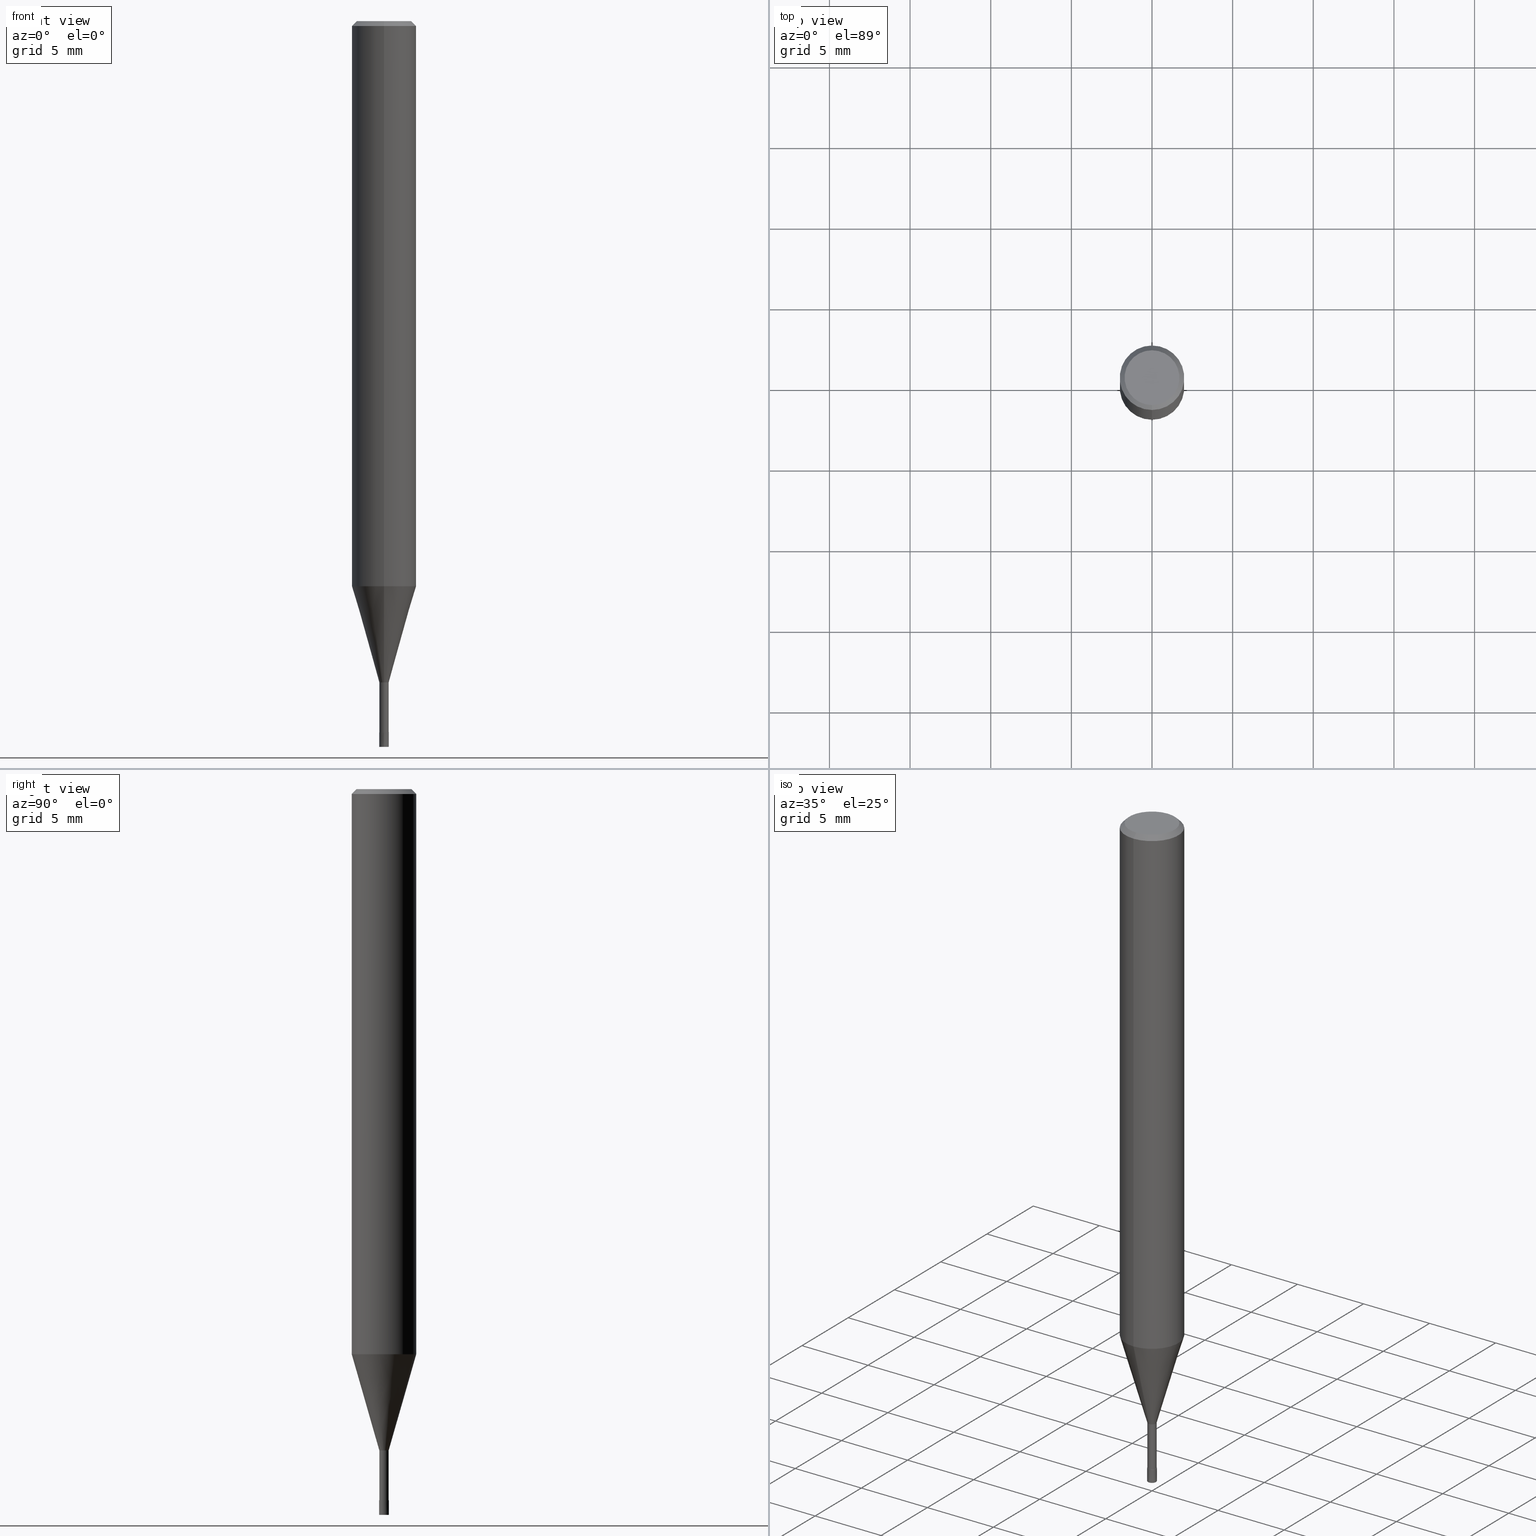
[diagram: canonical four-view strip — front | top / right | iso, engineering-drawing reading convention]
A machine part, canonical four-view strip (front | top / right | iso — engineering-drawing reading convention). The complete STEP part file that produces these views, byte-faithful:
ISO-10303-21;
HEADER;
FILE_DESCRIPTION(('no description'),'unknown implementation level');
FILE_NAME('HLS2006-040-Huellk.stp','  ',('CIMSOURCE GmbH'),('CADClick - KiM GmbH - www.kimweb.de'),'unknown preprocess','ACIS','unknown authorization');
FILE_SCHEMA(('automotive_design'));
ENDSEC;
DATA;
#1=MECHANICAL_DESIGN_GEOMETRIC_PRESENTATION_REPRESENTATION(' ',(#14,#15,#16,#17,#18,#19,#20,#21,#22,#23,#24,#25,#26,#27,#28,#29,#30,#31,#32,#33,#34,#35,#36,#37,#38,#39,#40,#41,#42,#43,#44,#45,#46,#47,#48,#49,#50,#51,#52,#53,#54,#55,#56,#57,#58,#59,#60,#61,#62,#63,#64,#65,#66,#67,#68,#69,#70,#71,#72),#10);
#2=PRODUCT_DEFINITION_CONTEXT('',#73,'design');
#3=APPLICATION_PROTOCOL_DEFINITION('INTERNATIONAL STANDARD','automotive_design',1994,#73);
#4=PRODUCT_CATEGORY_RELATIONSHIP('NONE','NONE',#74,#75);
#5=SHAPE_DEFINITION_REPRESENTATION(#76,#77);
#6=PRODUCT_DEFINITION_CONTEXT('',#78,'design');
#7=APPLICATION_PROTOCOL_DEFINITION('INTERNATIONAL STANDARD','automotive_design',1994,#78);
#8=PRODUCT_CATEGORY_RELATIONSHIP('NONE','NONE',#79,#80);
#9=SHAPE_DEFINITION_REPRESENTATION(#81,#82);
#10= (GEOMETRIC_REPRESENTATION_CONTEXT(3)GLOBAL_UNCERTAINTY_ASSIGNED_CONTEXT((#85))GLOBAL_UNIT_ASSIGNED_CONTEXT((#87,#88,#89))REPRESENTATION_CONTEXT('NONE','WORKSPACE'));
#14=STYLED_ITEM('',(#91),#92);
#15=STYLED_ITEM('',(#93),#94);
#16=STYLED_ITEM('',(#95),#96);
#17=STYLED_ITEM('',(#97),#98);
#18=STYLED_ITEM('',(#99),#100);
#19=STYLED_ITEM('',(#101),#102);
#20=STYLED_ITEM('',(#103),#104);
#21=STYLED_ITEM('',(#105),#106);
#22=STYLED_ITEM('',(#107),#108);
#23=STYLED_ITEM('',(#109),#110);
#24=STYLED_ITEM('',(#111),#112);
#25=STYLED_ITEM('',(#113),#114);
#26=STYLED_ITEM('',(#115),#116);
#27=STYLED_ITEM('',(#117),#118);
#28=STYLED_ITEM('',(#119),#120);
#29=STYLED_ITEM('',(#121),#122);
#30=STYLED_ITEM('',(#123),#124);
#31=STYLED_ITEM('',(#125),#126);
#32=STYLED_ITEM('',(#127),#128);
#33=STYLED_ITEM('',(#129),#130);
#34=STYLED_ITEM('',(#131),#132);
#35=STYLED_ITEM('',(#133),#134);
#36=STYLED_ITEM('',(#135),#136);
#37=STYLED_ITEM('',(#137),#138);
#38=STYLED_ITEM('',(#139),#140);
#39=STYLED_ITEM('',(#141),#142);
#40=STYLED_ITEM('',(#143),#144);
#41=STYLED_ITEM('',(#145),#146);
#42=STYLED_ITEM('',(#147),#148);
#43=STYLED_ITEM('',(#149),#150);
#44=STYLED_ITEM('',(#151),#152);
#45=STYLED_ITEM('',(#153),#154);
#46=STYLED_ITEM('',(#155),#156);
#47=STYLED_ITEM('',(#157),#158);
#48=STYLED_ITEM('',(#159),#160);
#49=STYLED_ITEM('',(#161),#162);
#50=STYLED_ITEM('',(#163),#164);
#51=STYLED_ITEM('',(#165),#166);
#52=STYLED_ITEM('',(#167),#168);
#53=STYLED_ITEM('',(#169),#170);
#54=STYLED_ITEM('',(#171),#172);
#55=STYLED_ITEM('',(#173),#174);
#56=STYLED_ITEM('',(#175),#176);
#57=STYLED_ITEM('',(#177),#178);
#58=STYLED_ITEM('',(#179),#180);
#59=STYLED_ITEM('',(#181),#182);
#60=STYLED_ITEM('',(#183),#184);
#61=STYLED_ITEM('',(#185),#186);
#62=STYLED_ITEM('',(#187),#188);
#63=STYLED_ITEM('',(#189),#190);
#64=STYLED_ITEM('',(#191),#192);
#65=STYLED_ITEM('',(#193),#194);
#66=STYLED_ITEM('',(#195),#196);
#67=STYLED_ITEM('',(#197),#198);
#68=STYLED_ITEM('',(#199),#200);
#69=STYLED_ITEM('',(#201),#202);
#70=STYLED_ITEM('',(#203),#204);
#71=STYLED_ITEM('',(#205),#206);
#72=STYLED_ITEM('',(#207),#208);
#73=APPLICATION_CONTEXT(' ');
#74=PRODUCT_CATEGORY('part','NONE');
#75=PRODUCT_RELATED_PRODUCT_CATEGORY('detail',' ',(#209));
#76=PRODUCT_DEFINITION_SHAPE('NONE','NONE',#210);
#77=ADVANCED_BREP_SHAPE_REPRESENTATION('1',(#100,#211),#10);
#78=APPLICATION_CONTEXT(' ');
#79=PRODUCT_CATEGORY('part','NONE');
#80=PRODUCT_RELATED_PRODUCT_CATEGORY('detail',' ',(#212));
#81=PRODUCT_DEFINITION_SHAPE('NONE','NONE',#213);
#82=ADVANCED_BREP_SHAPE_REPRESENTATION('2',(#176,#214),#10);
#85=UNCERTAINTY_MEASURE_WITH_UNIT(LENGTH_MEASURE(1.0E-006),#87,'','');
#87= (CONVERSION_BASED_UNIT('MILLIMETRE',#217)LENGTH_UNIT()NAMED_UNIT(#220));
#88= (NAMED_UNIT(#222)PLANE_ANGLE_UNIT()SI_UNIT($,.RADIAN.));
#89= (NAMED_UNIT(#222)SOLID_ANGLE_UNIT()SI_UNIT($,.STERADIAN.));
#91=PRESENTATION_STYLE_ASSIGNMENT((#228));
#92=EDGE_CURVE('',#134,#168,#229,.T.);
#93=PRESENTATION_STYLE_ASSIGNMENT((#230));
#94=EDGE_CURVE('',#194,#208,#231,.T.);
#95=PRESENTATION_STYLE_ASSIGNMENT((#232));
#96=EDGE_CURVE('',#142,#134,#233,.T.);
#97=PRESENTATION_STYLE_ASSIGNMENT((#234));
#98=VERTEX_POINT('',#235);
#99=PRESENTATION_STYLE_ASSIGNMENT((#236));
#100=MANIFOLD_SOLID_BREP('1',#237);
#101=PRESENTATION_STYLE_ASSIGNMENT((#238));
#102=VERTEX_POINT('',#239);
#103=PRESENTATION_STYLE_ASSIGNMENT((#240));
#104=ADVANCED_FACE('',(#241),#242,.T.);
#105=PRESENTATION_STYLE_ASSIGNMENT((#243));
#106=ADVANCED_FACE('',(#244),#245,.T.);
#107=PRESENTATION_STYLE_ASSIGNMENT((#246));
#108=EDGE_CURVE('',#152,#102,#247,.T.);
#109=PRESENTATION_STYLE_ASSIGNMENT((#248));
#110=EDGE_CURVE('',#168,#98,#249,.T.);
#111=PRESENTATION_STYLE_ASSIGNMENT((#250));
#112=EDGE_CURVE('',#172,#118,#251,.T.);
#113=PRESENTATION_STYLE_ASSIGNMENT((#252));
#114=ADVANCED_FACE('',(#253),#254,.T.);
#115=PRESENTATION_STYLE_ASSIGNMENT((#255));
#116=EDGE_CURVE('',#160,#180,#256,.T.);
#117=PRESENTATION_STYLE_ASSIGNMENT((#257));
#118=VERTEX_POINT('',#258);
#119=PRESENTATION_STYLE_ASSIGNMENT((#259));
#120=EDGE_CURVE('',#132,#178,#260,.T.);
#121=PRESENTATION_STYLE_ASSIGNMENT((#261));
#122=ADVANCED_FACE('',(#262),#263,.T.);
#123=PRESENTATION_STYLE_ASSIGNMENT((#264));
#124=EDGE_CURVE('',#102,#152,#265,.T.);
#125=PRESENTATION_STYLE_ASSIGNMENT((#266));
#126=EDGE_CURVE('',#172,#180,#267,.T.);
#127=PRESENTATION_STYLE_ASSIGNMENT((#268));
#128=EDGE_CURVE('',#98,#142,#269,.T.);
#129=PRESENTATION_STYLE_ASSIGNMENT((#270));
#130=EDGE_CURVE('',#98,#168,#271,.T.);
#131=PRESENTATION_STYLE_ASSIGNMENT((#272));
#132=VERTEX_POINT('',#273);
#133=PRESENTATION_STYLE_ASSIGNMENT((#274));
#134=VERTEX_POINT('',#275);
#135=PRESENTATION_STYLE_ASSIGNMENT((#276));
#136=EDGE_CURVE('',#160,#118,#277,.T.);
#137=PRESENTATION_STYLE_ASSIGNMENT((#278));
#138=EDGE_CURVE('',#134,#142,#279,.T.);
#139=PRESENTATION_STYLE_ASSIGNMENT((#280));
#140=VERTEX_POINT('',#281);
#141=PRESENTATION_STYLE_ASSIGNMENT((#282));
#142=VERTEX_POINT('',#283);
#143=PRESENTATION_STYLE_ASSIGNMENT((#284));
#144=EDGE_CURVE('',#102,#160,#285,.T.);
#145=PRESENTATION_STYLE_ASSIGNMENT((#286));
#146=ADVANCED_FACE('',(#287),#288,.T.);
#147=PRESENTATION_STYLE_ASSIGNMENT((#289));
#148=ADVANCED_FACE('',(#290,#291),#292,.T.);
#149=PRESENTATION_STYLE_ASSIGNMENT((#293));
#150=ADVANCED_FACE('',(#294),#295,.T.);
#151=PRESENTATION_STYLE_ASSIGNMENT((#296));
#152=VERTEX_POINT('',#297);
#153=PRESENTATION_STYLE_ASSIGNMENT((#298));
#154=EDGE_CURVE('',#182,#140,#299,.T.);
#155=PRESENTATION_STYLE_ASSIGNMENT((#300));
#156=ADVANCED_FACE('',(#301),#302,.T.);
#157=PRESENTATION_STYLE_ASSIGNMENT((#303));
#158=ADVANCED_FACE('',(#304),#305,.T.);
#159=PRESENTATION_STYLE_ASSIGNMENT((#306));
#160=VERTEX_POINT('',#307);
#161=PRESENTATION_STYLE_ASSIGNMENT((#308));
#162=EDGE_CURVE('',#118,#160,#309,.T.);
#163=PRESENTATION_STYLE_ASSIGNMENT((#310));
#164=EDGE_CURVE('',#208,#194,#311,.T.);
#165=PRESENTATION_STYLE_ASSIGNMENT((#312));
#166=EDGE_CURVE('',#178,#132,#313,.T.);
#167=PRESENTATION_STYLE_ASSIGNMENT((#314));
#168=VERTEX_POINT('',#315);
#169=PRESENTATION_STYLE_ASSIGNMENT((#316));
#170=ADVANCED_FACE('',(#317),#318,.T.);
#171=PRESENTATION_STYLE_ASSIGNMENT((#319));
#172=VERTEX_POINT('',#320);
#173=PRESENTATION_STYLE_ASSIGNMENT((#321));
#174=ADVANCED_FACE('',(#322),#323,.T.);
#175=PRESENTATION_STYLE_ASSIGNMENT((#324));
#176=MANIFOLD_SOLID_BREP('2',#325);
#177=PRESENTATION_STYLE_ASSIGNMENT((#326));
#178=VERTEX_POINT('',#327);
#179=PRESENTATION_STYLE_ASSIGNMENT((#328));
#180=VERTEX_POINT('',#329);
#181=PRESENTATION_STYLE_ASSIGNMENT((#330));
#182=VERTEX_POINT('',#331);
#183=PRESENTATION_STYLE_ASSIGNMENT((#332));
#184=ADVANCED_FACE('',(#333),#334,.T.);
#185=PRESENTATION_STYLE_ASSIGNMENT((#335));
#186=EDGE_CURVE('',#180,#172,#336,.T.);
#187=PRESENTATION_STYLE_ASSIGNMENT((#337));
#188=EDGE_CURVE('',#182,#194,#338,.T.);
#189=PRESENTATION_STYLE_ASSIGNMENT((#339));
#190=ADVANCED_FACE('',(#340),#341,.T.);
#191=PRESENTATION_STYLE_ASSIGNMENT((#342));
#192=EDGE_CURVE('',#140,#182,#343,.T.);
#193=PRESENTATION_STYLE_ASSIGNMENT((#344));
#194=VERTEX_POINT('',#345);
#195=PRESENTATION_STYLE_ASSIGNMENT((#346));
#196=EDGE_CURVE('',#118,#152,#347,.T.);
#197=PRESENTATION_STYLE_ASSIGNMENT((#348));
#198=ADVANCED_FACE('',(#349),#350,.T.);
#199=PRESENTATION_STYLE_ASSIGNMENT((#351));
#200=EDGE_CURVE('',#208,#140,#352,.T.);
#201=PRESENTATION_STYLE_ASSIGNMENT((#353));
#202=ADVANCED_FACE('',(#354),#355,.T.);
#203=PRESENTATION_STYLE_ASSIGNMENT((#356));
#204=EDGE_CURVE('',#194,#132,#357,.T.);
#205=PRESENTATION_STYLE_ASSIGNMENT((#358));
#206=EDGE_CURVE('',#178,#208,#359,.T.);
#207=PRESENTATION_STYLE_ASSIGNMENT((#360));
#208=VERTEX_POINT('',#361);
#209=PRODUCT('1','1','PART-1-DESC',(#362));
#210=PRODUCT_DEFINITION('NONE','NONE',#363,#2);
#211=AXIS2_PLACEMENT_3D('',#364,#365,#366);
#212=PRODUCT('2','2','PART-2-DESC',(#367));
#213=PRODUCT_DEFINITION('NONE','NONE',#368,#6);
#214=AXIS2_PLACEMENT_3D('',#369,#370,#371);
#217=LENGTH_MEASURE_WITH_UNIT(LENGTH_MEASURE(1.0),#372);
#220=DIMENSIONAL_EXPONENTS(1.0,0.0,0.0,0.0,0.0,0.0,0.0);
#222=DIMENSIONAL_EXPONENTS(0.0,0.0,0.0,0.0,0.0,0.0,0.0);
#228=CURVE_STYLE('',#373,POSITIVE_LENGTH_MEASURE(1.0E-006),#374);
#229=LINE('',#375,#376);
#230=CURVE_STYLE('',#377,POSITIVE_LENGTH_MEASURE(1.0E-006),#378);
#231=CIRCLE('',#379,0.28995);
#232=CURVE_STYLE('',#380,POSITIVE_LENGTH_MEASURE(1.0E-006),#381);
#233=CIRCLE('',#382,0.3);
#234=POINT_STYLE(' ',#383,POSITIVE_LENGTH_MEASURE(1.0E-006),#384);
#235=CARTESIAN_POINT('',(0.0,0.2999,-44.1));
#236=SURFACE_STYLE_USAGE(.BOTH.,#385);
#237=CLOSED_SHELL('',(#104,#122,#170,#146,#148,#150,#156,#202,#190,#184,#158));
#238=POINT_STYLE(' ',#386,POSITIVE_LENGTH_MEASURE(1.0E-006),#387);
#239=CARTESIAN_POINT('',(0.0,1.7,0.0));
#240=SURFACE_STYLE_USAGE(.BOTH.,#388);
#241=FACE_OUTER_BOUND('',#389,.T.);
#242=CYLINDRICAL_SURFACE('',#390,0.28995);
#243=SURFACE_STYLE_USAGE(.BOTH.,#391);
#244=FACE_OUTER_BOUND('',#392,.T.);
#245=CONICAL_SURFACE('',#393,0.29995,0.000111111110653851);
#246=CURVE_STYLE('',#394,POSITIVE_LENGTH_MEASURE(1.0E-006),#395);
#247=CIRCLE('',#396,1.7);
#248=CURVE_STYLE('',#397,POSITIVE_LENGTH_MEASURE(1.0E-006),#398);
#249=CIRCLE('',#399,0.2999);
#250=CURVE_STYLE('',#400,POSITIVE_LENGTH_MEASURE(1.0E-006),#401);
#251=LINE('',#402,#403);
#252=SURFACE_STYLE_USAGE(.BOTH.,#404);
#253=FACE_OUTER_BOUND('',#405,.T.);
#254=PLANE('',#406);
#255=CURVE_STYLE('',#407,POSITIVE_LENGTH_MEASURE(1.0E-006),#408);
#256=LINE('',#409,#410);
#257=POINT_STYLE(' ',#411,POSITIVE_LENGTH_MEASURE(1.0E-006),#412);
#258=CARTESIAN_POINT('',(2.44921270764475E-016,-2.0,-0.299999999999997));
#259=CURVE_STYLE('',#413,POSITIVE_LENGTH_MEASURE(1.0E-006),#414);
#260=CIRCLE('',#415,0.28995);
#261=SURFACE_STYLE_USAGE(.BOTH.,#416);
#262=FACE_OUTER_BOUND('',#417,.T.);
#263=CONICAL_SURFACE('',#418,1.14495,0.279273950674422);
#264=CURVE_STYLE('',#419,POSITIVE_LENGTH_MEASURE(1.0E-006),#420);
#265=CIRCLE('',#421,1.7);
#266=CURVE_STYLE('',#422,POSITIVE_LENGTH_MEASURE(1.0E-006),#423);
#267=CIRCLE('',#424,2.0);
#268=CURVE_STYLE('',#425,POSITIVE_LENGTH_MEASURE(1.0E-006),#426);
#269=LINE('',#427,#428);
#270=CURVE_STYLE('',#429,POSITIVE_LENGTH_MEASURE(1.0E-006),#430);
#271=CIRCLE('',#431,0.2999);
#272=POINT_STYLE(' ',#432,POSITIVE_LENGTH_MEASURE(1.0E-006),#433);
#273=CARTESIAN_POINT('',(0.0,0.28995,-44.1));
#274=POINT_STYLE(' ',#434,POSITIVE_LENGTH_MEASURE(1.0E-006),#435);
#275=CARTESIAN_POINT('',(3.67381906146713E-017,-0.3,-45.0));
#276=CURVE_STYLE('',#436,POSITIVE_LENGTH_MEASURE(1.0E-006),#437);
#277=CIRCLE('',#438,2.0);
#278=CURVE_STYLE('',#439,POSITIVE_LENGTH_MEASURE(1.0E-006),#440);
#279=CIRCLE('',#441,0.3);
#280=POINT_STYLE(' ',#442,POSITIVE_LENGTH_MEASURE(1.0E-006),#443);
#281=CARTESIAN_POINT('',(2.44915147732706E-016,-1.99995,-35.037));
#282=POINT_STYLE(' ',#444,POSITIVE_LENGTH_MEASURE(1.0E-006),#445);
#283=CARTESIAN_POINT('',(0.0,0.3,-45.0));
#284=CURVE_STYLE('',#446,POSITIVE_LENGTH_MEASURE(1.0E-006),#447);
#285=LINE('',#448,#449);
#286=SURFACE_STYLE_USAGE(.BOTH.,#450);
#287=FACE_OUTER_BOUND('',#451,.T.);
#288=CONICAL_SURFACE('',#452,1.85,0.785398163397453);
#289=SURFACE_STYLE_USAGE(.BOTH.,#453);
#290=FACE_OUTER_BOUND('',#454,.T.);
#291=FACE_BOUND('',#455,.T.);
#292=PLANE('',#456);
#293=SURFACE_STYLE_USAGE(.BOTH.,#457);
#294=FACE_OUTER_BOUND('',#458,.T.);
#295=PLANE('',#459);
#296=POINT_STYLE(' ',#460,POSITIVE_LENGTH_MEASURE(1.0E-006),#461);
#297=CARTESIAN_POINT('',(2.08183080149804E-016,-1.7,0.0));
#298=CURVE_STYLE('',#462,POSITIVE_LENGTH_MEASURE(1.0E-006),#463);
#299=CIRCLE('',#464,1.99995);
#300=SURFACE_STYLE_USAGE(.BOTH.,#465);
#301=FACE_OUTER_BOUND('',#466,.T.);
#302=CONICAL_SURFACE('',#467,1.85,0.785398163397453);
#303=SURFACE_STYLE_USAGE(.BOTH.,#468);
#304=FACE_OUTER_BOUND('',#469,.T.);
#305=PLANE('',#470);
#306=POINT_STYLE(' ',#471,POSITIVE_LENGTH_MEASURE(1.0E-006),#472);
#307=CARTESIAN_POINT('',(0.0,2.0,-0.299999999999997));
#308=CURVE_STYLE('',#473,POSITIVE_LENGTH_MEASURE(1.0E-006),#474);
#309=CIRCLE('',#475,2.0);
#310=CURVE_STYLE('',#476,POSITIVE_LENGTH_MEASURE(1.0E-006),#477);
#311=CIRCLE('',#478,0.28995);
#312=CURVE_STYLE('',#479,POSITIVE_LENGTH_MEASURE(1.0E-006),#480);
#313=CIRCLE('',#481,0.28995);
#314=POINT_STYLE(' ',#482,POSITIVE_LENGTH_MEASURE(1.0E-006),#483);
#315=CARTESIAN_POINT('',(3.67259445511331E-017,-0.2999,-44.1));
#316=SURFACE_STYLE_USAGE(.BOTH.,#484);
#317=FACE_OUTER_BOUND('',#485,.T.);
#318=CYLINDRICAL_SURFACE('',#486,2.0);
#319=POINT_STYLE(' ',#487,POSITIVE_LENGTH_MEASURE(1.0E-006),#488);
#320=CARTESIAN_POINT('',(2.44921270764475E-016,-2.0,-35.037));
#321=SURFACE_STYLE_USAGE(.BOTH.,#489);
#322=FACE_OUTER_BOUND('',#490,.T.);
#323=PLANE('',#491);
#324=SURFACE_STYLE_USAGE(.BOTH.,#492);
#325=CLOSED_SHELL('',(#106,#174,#198,#114));
#326=POINT_STYLE(' ',#493,POSITIVE_LENGTH_MEASURE(1.0E-006),#494);
#327=CARTESIAN_POINT('',(3.55074612290798E-017,-0.28995,-44.1));
#328=POINT_STYLE(' ',#495,POSITIVE_LENGTH_MEASURE(1.0E-006),#496);
#329=CARTESIAN_POINT('',(0.0,2.0,-35.037));
#330=POINT_STYLE(' ',#497,POSITIVE_LENGTH_MEASURE(1.0E-006),#498);
#331=CARTESIAN_POINT('',(0.0,1.99995,-35.037));
#332=SURFACE_STYLE_USAGE(.BOTH.,#499);
#333=FACE_OUTER_BOUND('',#500,.T.);
#334=CYLINDRICAL_SURFACE('',#501,0.28995);
#335=CURVE_STYLE('',#502,POSITIVE_LENGTH_MEASURE(1.0E-006),#503);
#336=CIRCLE('',#504,2.0);
#337=CURVE_STYLE('',#505,POSITIVE_LENGTH_MEASURE(1.0E-006),#506);
#338=LINE('',#507,#508);
#339=SURFACE_STYLE_USAGE(.BOTH.,#509);
#340=FACE_OUTER_BOUND('',#510,.T.);
#341=CONICAL_SURFACE('',#511,1.14495,0.279273950674422);
#342=CURVE_STYLE('',#512,POSITIVE_LENGTH_MEASURE(1.0E-006),#513);
#343=CIRCLE('',#514,1.99995);
#344=POINT_STYLE(' ',#515,POSITIVE_LENGTH_MEASURE(1.0E-006),#516);
#345=CARTESIAN_POINT('',(0.0,0.28995,-41.0));
#346=CURVE_STYLE('',#517,POSITIVE_LENGTH_MEASURE(1.0E-006),#518);
#347=LINE('',#519,#520);
#348=SURFACE_STYLE_USAGE(.BOTH.,#521);
#349=FACE_OUTER_BOUND('',#522,.T.);
#350=CONICAL_SURFACE('',#523,0.29995,0.000111111110653851);
#351=CURVE_STYLE('',#524,POSITIVE_LENGTH_MEASURE(1.0E-006),#525);
#352=LINE('',#526,#527);
#353=SURFACE_STYLE_USAGE(.BOTH.,#528);
#354=FACE_OUTER_BOUND('',#529,.T.);
#355=CYLINDRICAL_SURFACE('',#530,2.0);
#356=CURVE_STYLE('',#531,POSITIVE_LENGTH_MEASURE(1.0E-006),#532);
#357=LINE('',#533,#534);
#358=CURVE_STYLE('',#535,POSITIVE_LENGTH_MEASURE(1.0E-006),#536);
#359=LINE('',#537,#538);
#360=POINT_STYLE(' ',#539,POSITIVE_LENGTH_MEASURE(1.0E-006),#540);
#361=CARTESIAN_POINT('',(3.55074612290798E-017,-0.28995,-41.0));
#362=PRODUCT_CONTEXT('',#73,'mechanical');
#363=PRODUCT_DEFINITION_FORMATION_WITH_SPECIFIED_SOURCE(' ','NONE',#209,.NOT_KNOWN.);
#364=CARTESIAN_POINT('',(0.0,0.0,0.0));
#365=DIRECTION('',(0.0,0.0,1.0));
#366=DIRECTION('',(1.0,0.0,0.0));
#367=PRODUCT_CONTEXT('',#78,'mechanical');
#368=PRODUCT_DEFINITION_FORMATION_WITH_SPECIFIED_SOURCE(' ','NONE',#212,.NOT_KNOWN.);
#369=CARTESIAN_POINT('',(0.0,0.0,0.0));
#370=DIRECTION('',(0.0,0.0,1.0));
#371=DIRECTION('',(1.0,0.0,0.0));
#372= (NAMED_UNIT(#220)LENGTH_UNIT()SI_UNIT(.MILLI.,.METRE.));
#373=DRAUGHTING_PRE_DEFINED_CURVE_FONT('continuous');
#374=COLOUR_RGB('',0.800000011920929,0.800000011920929,0.800000011920929);
#375=CARTESIAN_POINT('',(3.67320675829022E-017,-0.29995,-44.55));
#376=VECTOR('',#542,1.0);
#377=DRAUGHTING_PRE_DEFINED_CURVE_FONT('continuous');
#378=COLOUR_RGB('',0.498039215803146,0.498039215803146,0.498039215803146);
#379=AXIS2_PLACEMENT_3D('',#543,#544,#545);
#380=DRAUGHTING_PRE_DEFINED_CURVE_FONT('continuous');
#381=COLOUR_RGB('',0.800000011920929,0.800000011920929,0.800000011920929);
#382=AXIS2_PLACEMENT_3D('',#546,#547,#548);
#383=PRE_DEFINED_MARKER('');
#384=COLOUR_RGB('',0.800000011920929,0.800000011920929,0.800000011920929);
#385=SURFACE_SIDE_STYLE('',(#549));
#386=PRE_DEFINED_MARKER('');
#387=COLOUR_RGB('',0.498039215803146,0.498039215803146,0.498039215803146);
#388=SURFACE_SIDE_STYLE('',(#550));
#389=EDGE_LOOP('',(#551,#552,#553,#554));
#390=AXIS2_PLACEMENT_3D('',#555,#556,#557);
#391=SURFACE_SIDE_STYLE('',(#558));
#392=EDGE_LOOP('',(#559,#560,#561,#562));
#393=AXIS2_PLACEMENT_3D('',#563,#564,#565);
#394=DRAUGHTING_PRE_DEFINED_CURVE_FONT('continuous');
#395=COLOUR_RGB('',0.498039215803146,0.498039215803146,0.498039215803146);
#396=AXIS2_PLACEMENT_3D('',#566,#567,#568);
#397=DRAUGHTING_PRE_DEFINED_CURVE_FONT('continuous');
#398=COLOUR_RGB('',0.800000011920929,0.800000011920929,0.800000011920929);
#399=AXIS2_PLACEMENT_3D('',#569,#570,#571);
#400=DRAUGHTING_PRE_DEFINED_CURVE_FONT('continuous');
#401=COLOUR_RGB('',0.498039215803146,0.498039215803146,0.498039215803146);
#402=CARTESIAN_POINT('',(2.44921270764475E-016,-2.0,-17.6685));
#403=VECTOR('',#572,1.0);
#404=SURFACE_SIDE_STYLE('',(#573));
#405=EDGE_LOOP('',(#574,#575));
#406=AXIS2_PLACEMENT_3D('',#576,#577,#578);
#407=DRAUGHTING_PRE_DEFINED_CURVE_FONT('continuous');
#408=COLOUR_RGB('',0.498039215803146,0.498039215803146,0.498039215803146);
#409=CARTESIAN_POINT('',(-2.44921270764475E-016,2.0,-17.6685));
#410=VECTOR('',#579,1.0);
#411=PRE_DEFINED_MARKER('');
#412=COLOUR_RGB('',0.498039215803146,0.498039215803146,0.498039215803146);
#413=DRAUGHTING_PRE_DEFINED_CURVE_FONT('continuous');
#414=COLOUR_RGB('',0.498039215803146,0.498039215803146,0.498039215803146);
#415=AXIS2_PLACEMENT_3D('',#580,#581,#582);
#416=SURFACE_SIDE_STYLE('',(#583));
#417=EDGE_LOOP('',(#584,#585,#586,#587));
#418=AXIS2_PLACEMENT_3D('',#588,#589,#590);
#419=DRAUGHTING_PRE_DEFINED_CURVE_FONT('continuous');
#420=COLOUR_RGB('',0.498039215803146,0.498039215803146,0.498039215803146);
#421=AXIS2_PLACEMENT_3D('',#591,#592,#593);
#422=DRAUGHTING_PRE_DEFINED_CURVE_FONT('continuous');
#423=COLOUR_RGB('',0.498039215803146,0.498039215803146,0.498039215803146);
#424=AXIS2_PLACEMENT_3D('',#594,#595,#596);
#425=DRAUGHTING_PRE_DEFINED_CURVE_FONT('continuous');
#426=COLOUR_RGB('',0.800000011920929,0.800000011920929,0.800000011920929);
#427=CARTESIAN_POINT('',(-3.67320675829022E-017,0.29995,-44.55));
#428=VECTOR('',#597,1.0);
#429=DRAUGHTING_PRE_DEFINED_CURVE_FONT('continuous');
#430=COLOUR_RGB('',0.800000011920929,0.800000011920929,0.800000011920929);
#431=AXIS2_PLACEMENT_3D('',#598,#599,#600);
#432=PRE_DEFINED_MARKER('');
#433=COLOUR_RGB('',0.498039215803146,0.498039215803146,0.498039215803146);
#434=PRE_DEFINED_MARKER('');
#435=COLOUR_RGB('',0.800000011920929,0.800000011920929,0.800000011920929);
#436=DRAUGHTING_PRE_DEFINED_CURVE_FONT('continuous');
#437=COLOUR_RGB('',0.498039215803146,0.498039215803146,0.498039215803146);
#438=AXIS2_PLACEMENT_3D('',#601,#602,#603);
#439=DRAUGHTING_PRE_DEFINED_CURVE_FONT('continuous');
#440=COLOUR_RGB('',0.800000011920929,0.800000011920929,0.800000011920929);
#441=AXIS2_PLACEMENT_3D('',#604,#605,#606);
#442=PRE_DEFINED_MARKER('');
#443=COLOUR_RGB('',0.498039215803146,0.498039215803146,0.498039215803146);
#444=PRE_DEFINED_MARKER('');
#445=COLOUR_RGB('',0.800000011920929,0.800000011920929,0.800000011920929);
#446=DRAUGHTING_PRE_DEFINED_CURVE_FONT('continuous');
#447=COLOUR_RGB('',0.498039215803146,0.498039215803146,0.498039215803146);
#448=CARTESIAN_POINT('',(-2.2655217545714E-016,1.85,-0.149999999999999));
#449=VECTOR('',#607,1.0);
#450=SURFACE_SIDE_STYLE('',(#608));
#451=EDGE_LOOP('',(#609,#610,#611,#612));
#452=AXIS2_PLACEMENT_3D('',#613,#614,#615);
#453=SURFACE_SIDE_STYLE('',(#616));
#454=EDGE_LOOP('',(#617,#618));
#455=EDGE_LOOP('',(#619,#620));
#456=AXIS2_PLACEMENT_3D('',#621,#622,#623);
#457=SURFACE_SIDE_STYLE('',(#624));
#458=EDGE_LOOP('',(#625,#626));
#459=AXIS2_PLACEMENT_3D('',#627,#628,#629);
#460=PRE_DEFINED_MARKER('');
#461=COLOUR_RGB('',0.498039215803146,0.498039215803146,0.498039215803146);
#462=DRAUGHTING_PRE_DEFINED_CURVE_FONT('continuous');
#463=COLOUR_RGB('',0.498039215803146,0.498039215803146,0.498039215803146);
#464=AXIS2_PLACEMENT_3D('',#630,#631,#632);
#465=SURFACE_SIDE_STYLE('',(#633));
#466=EDGE_LOOP('',(#634,#635,#636,#637));
#467=AXIS2_PLACEMENT_3D('',#638,#639,#640);
#468=SURFACE_SIDE_STYLE('',(#641));
#469=EDGE_LOOP('',(#642,#643));
#470=AXIS2_PLACEMENT_3D('',#644,#645,#646);
#471=PRE_DEFINED_MARKER('');
#472=COLOUR_RGB('',0.498039215803146,0.498039215803146,0.498039215803146);
#473=DRAUGHTING_PRE_DEFINED_CURVE_FONT('continuous');
#474=COLOUR_RGB('',0.498039215803146,0.498039215803146,0.498039215803146);
#475=AXIS2_PLACEMENT_3D('',#647,#648,#649);
#476=DRAUGHTING_PRE_DEFINED_CURVE_FONT('continuous');
#477=COLOUR_RGB('',0.498039215803146,0.498039215803146,0.498039215803146);
#478=AXIS2_PLACEMENT_3D('',#650,#651,#652);
#479=DRAUGHTING_PRE_DEFINED_CURVE_FONT('continuous');
#480=COLOUR_RGB('',0.498039215803146,0.498039215803146,0.498039215803146);
#481=AXIS2_PLACEMENT_3D('',#653,#654,#655);
#482=PRE_DEFINED_MARKER('');
#483=COLOUR_RGB('',0.800000011920929,0.800000011920929,0.800000011920929);
#484=SURFACE_SIDE_STYLE('',(#656));
#485=EDGE_LOOP('',(#657,#658,#659,#660));
#486=AXIS2_PLACEMENT_3D('',#661,#662,#663);
#487=PRE_DEFINED_MARKER('');
#488=COLOUR_RGB('',0.498039215803146,0.498039215803146,0.498039215803146);
#489=SURFACE_SIDE_STYLE('',(#664));
#490=EDGE_LOOP('',(#665,#666));
#491=AXIS2_PLACEMENT_3D('',#667,#668,#669);
#492=SURFACE_SIDE_STYLE('',(#670));
#493=PRE_DEFINED_MARKER('');
#494=COLOUR_RGB('',0.498039215803146,0.498039215803146,0.498039215803146);
#495=PRE_DEFINED_MARKER('');
#496=COLOUR_RGB('',0.498039215803146,0.498039215803146,0.498039215803146);
#497=PRE_DEFINED_MARKER('');
#498=COLOUR_RGB('',0.498039215803146,0.498039215803146,0.498039215803146);
#499=SURFACE_SIDE_STYLE('',(#671));
#500=EDGE_LOOP('',(#672,#673,#674,#675));
#501=AXIS2_PLACEMENT_3D('',#676,#677,#678);
#502=DRAUGHTING_PRE_DEFINED_CURVE_FONT('continuous');
#503=COLOUR_RGB('',0.498039215803146,0.498039215803146,0.498039215803146);
#504=AXIS2_PLACEMENT_3D('',#679,#680,#681);
#505=DRAUGHTING_PRE_DEFINED_CURVE_FONT('continuous');
#506=COLOUR_RGB('',0.498039215803146,0.498039215803146,0.498039215803146);
#507=CARTESIAN_POINT('',(-1.40211304480893E-016,1.14495,-38.0185));
#508=VECTOR('',#682,1.0);
#509=SURFACE_SIDE_STYLE('',(#683));
#510=EDGE_LOOP('',(#684,#685,#686,#687));
#511=AXIS2_PLACEMENT_3D('',#688,#689,#690);
#512=DRAUGHTING_PRE_DEFINED_CURVE_FONT('continuous');
#513=COLOUR_RGB('',0.498039215803146,0.498039215803146,0.498039215803146);
#514=AXIS2_PLACEMENT_3D('',#691,#692,#693);
#515=PRE_DEFINED_MARKER('');
#516=COLOUR_RGB('',0.498039215803146,0.498039215803146,0.498039215803146);
#517=DRAUGHTING_PRE_DEFINED_CURVE_FONT('continuous');
#518=COLOUR_RGB('',0.498039215803146,0.498039215803146,0.498039215803146);
#519=CARTESIAN_POINT('',(2.2655217545714E-016,-1.85,-0.149999999999999));
#520=VECTOR('',#694,1.0);
#521=SURFACE_SIDE_STYLE('',(#695));
#522=EDGE_LOOP('',(#696,#697,#698,#699));
#523=AXIS2_PLACEMENT_3D('',#700,#701,#702);
#524=DRAUGHTING_PRE_DEFINED_CURVE_FONT('continuous');
#525=COLOUR_RGB('',0.498039215803146,0.498039215803146,0.498039215803146);
#526=CARTESIAN_POINT('',(1.40211304480893E-016,-1.14495,-38.0185));
#527=VECTOR('',#703,1.0);
#528=SURFACE_SIDE_STYLE('',(#704));
#529=EDGE_LOOP('',(#705,#706,#707,#708));
#530=AXIS2_PLACEMENT_3D('',#709,#710,#711);
#531=DRAUGHTING_PRE_DEFINED_CURVE_FONT('continuous');
#532=COLOUR_RGB('',0.498039215803146,0.498039215803146,0.498039215803146);
#533=CARTESIAN_POINT('',(-3.55074612290798E-017,0.28995,-42.55));
#534=VECTOR('',#712,1.0);
#535=DRAUGHTING_PRE_DEFINED_CURVE_FONT('continuous');
#536=COLOUR_RGB('',0.498039215803146,0.498039215803146,0.498039215803146);
#537=CARTESIAN_POINT('',(3.55074612290798E-017,-0.28995,-42.55));
#538=VECTOR('',#713,1.0);
#539=PRE_DEFINED_MARKER('');
#540=COLOUR_RGB('',0.498039215803146,0.498039215803146,0.498039215803146);
#542=DIRECTION('',(-1.36067371806994E-020,0.000111111110425228,0.999999993827161));
#543=CARTESIAN_POINT('',(0.0,0.0,-41.0));
#544=DIRECTION('',(0.0,0.0,-1.0));
#545=DIRECTION('',(0.0,1.0,0.0));
#546=CARTESIAN_POINT('',(0.0,0.0,-45.0));
#547=DIRECTION('',(0.0,0.0,-1.0));
#548=DIRECTION('',(0.0,1.0,0.0));
#549=SURFACE_STYLE_FILL_AREA(#714);
#550=SURFACE_STYLE_FILL_AREA(#715);
#551=ORIENTED_EDGE('',*,*,#204,.F.);
#552=ORIENTED_EDGE('',*,*,#94,.T.);
#553=ORIENTED_EDGE('',*,*,#206,.F.);
#554=ORIENTED_EDGE('',*,*,#120,.F.);
#555=CARTESIAN_POINT('',(0.0,0.0,-42.55));
#556=DIRECTION('',(-0.0,-0.0,1.0));
#557=DIRECTION('',(0.0,1.0,0.0));
#558=SURFACE_STYLE_FILL_AREA(#716);
#559=ORIENTED_EDGE('',*,*,#128,.F.);
#560=ORIENTED_EDGE('',*,*,#130,.T.);
#561=ORIENTED_EDGE('',*,*,#92,.F.);
#562=ORIENTED_EDGE('',*,*,#96,.F.);
#563=CARTESIAN_POINT('',(0.0,0.0,-44.55));
#564=DIRECTION('',(0.0,-0.0,-1.0));
#565=DIRECTION('',(0.0,1.0,0.0));
#566=CARTESIAN_POINT('',(0.0,0.0,0.0));
#567=DIRECTION('',(0.0,0.0,-1.0));
#568=DIRECTION('',(0.0,1.0,0.0));
#569=CARTESIAN_POINT('',(0.0,0.0,-44.1));
#570=DIRECTION('',(0.0,0.0,-1.0));
#571=DIRECTION('',(0.0,1.0,0.0));
#572=DIRECTION('',(-0.0,-0.0,1.0));
#573=SURFACE_STYLE_FILL_AREA(#717);
#574=ORIENTED_EDGE('',*,*,#96,.T.);
#575=ORIENTED_EDGE('',*,*,#138,.T.);
#576=CARTESIAN_POINT('',(0.0,0.1475,-45.0));
#577=DIRECTION('',(0.0,0.0,-1.0));
#578=DIRECTION('',(0.0,1.0,0.0));
#579=DIRECTION('',(0.0,0.0,-1.0));
#580=CARTESIAN_POINT('',(0.0,0.0,-44.1));
#581=DIRECTION('',(0.0,0.0,-1.0));
#582=DIRECTION('',(0.0,1.0,0.0));
#583=SURFACE_STYLE_FILL_AREA(#718);
#584=ORIENTED_EDGE('',*,*,#188,.F.);
#585=ORIENTED_EDGE('',*,*,#154,.T.);
#586=ORIENTED_EDGE('',*,*,#200,.F.);
#587=ORIENTED_EDGE('',*,*,#94,.F.);
#588=CARTESIAN_POINT('',(0.0,0.0,-38.0185));
#589=DIRECTION('',(-0.0,-0.0,1.0));
#590=DIRECTION('',(0.0,1.0,0.0));
#591=CARTESIAN_POINT('',(0.0,0.0,0.0));
#592=DIRECTION('',(0.0,0.0,-1.0));
#593=DIRECTION('',(0.0,1.0,0.0));
#594=CARTESIAN_POINT('',(0.0,0.0,-35.037));
#595=DIRECTION('',(0.0,0.0,-1.0));
#596=DIRECTION('',(0.0,1.0,0.0));
#597=DIRECTION('',(-1.36067371806994E-020,0.000111111110425228,-0.999999993827161));
#598=CARTESIAN_POINT('',(0.0,0.0,-44.1));
#599=DIRECTION('',(0.0,0.0,-1.0));
#600=DIRECTION('',(0.0,1.0,0.0));
#601=CARTESIAN_POINT('',(0.0,0.0,-0.299999999999997));
#602=DIRECTION('',(0.0,0.0,-1.0));
#603=DIRECTION('',(0.0,1.0,0.0));
#604=CARTESIAN_POINT('',(0.0,0.0,-45.0));
#605=DIRECTION('',(0.0,0.0,-1.0));
#606=DIRECTION('',(0.0,1.0,0.0));
#607=DIRECTION('',(-8.6592745707194E-017,0.707106781186551,-0.707106781186544));
#608=SURFACE_STYLE_FILL_AREA(#719);
#609=ORIENTED_EDGE('',*,*,#144,.F.);
#610=ORIENTED_EDGE('',*,*,#124,.T.);
#611=ORIENTED_EDGE('',*,*,#196,.F.);
#612=ORIENTED_EDGE('',*,*,#136,.F.);
#613=CARTESIAN_POINT('',(0.0,0.0,-0.149999999999999));
#614=DIRECTION('',(0.0,-0.0,-1.0));
#615=DIRECTION('',(0.0,1.0,0.0));
#616=SURFACE_STYLE_FILL_AREA(#720);
#617=ORIENTED_EDGE('',*,*,#186,.T.);
#618=ORIENTED_EDGE('',*,*,#126,.T.);
#619=ORIENTED_EDGE('',*,*,#154,.F.);
#620=ORIENTED_EDGE('',*,*,#192,.F.);
#621=CARTESIAN_POINT('',(0.0,1.0,-35.037));
#622=DIRECTION('',(0.0,0.0,-1.0));
#623=DIRECTION('',(0.0,1.0,0.0));
#624=SURFACE_STYLE_FILL_AREA(#721);
#625=ORIENTED_EDGE('',*,*,#124,.F.);
#626=ORIENTED_EDGE('',*,*,#108,.F.);
#627=CARTESIAN_POINT('',(0.0,0.85,0.0));
#628=DIRECTION('',(-0.0,0.0,1.0));
#629=DIRECTION('',(0.0,-1.0,0.0));
#630=CARTESIAN_POINT('',(0.0,0.0,-35.037));
#631=DIRECTION('',(0.0,0.0,-1.0));
#632=DIRECTION('',(0.0,1.0,0.0));
#633=SURFACE_STYLE_FILL_AREA(#722);
#634=ORIENTED_EDGE('',*,*,#144,.T.);
#635=ORIENTED_EDGE('',*,*,#162,.F.);
#636=ORIENTED_EDGE('',*,*,#196,.T.);
#637=ORIENTED_EDGE('',*,*,#108,.T.);
#638=CARTESIAN_POINT('',(0.0,0.0,-0.149999999999999));
#639=DIRECTION('',(0.0,-0.0,-1.0));
#640=DIRECTION('',(0.0,1.0,0.0));
#641=SURFACE_STYLE_FILL_AREA(#723);
#642=ORIENTED_EDGE('',*,*,#120,.T.);
#643=ORIENTED_EDGE('',*,*,#166,.T.);
#644=CARTESIAN_POINT('',(0.0,0.144975,-44.1));
#645=DIRECTION('',(0.0,0.0,-1.0));
#646=DIRECTION('',(0.0,1.0,0.0));
#647=CARTESIAN_POINT('',(0.0,0.0,-0.299999999999997));
#648=DIRECTION('',(0.0,0.0,-1.0));
#649=DIRECTION('',(0.0,1.0,0.0));
#650=CARTESIAN_POINT('',(0.0,0.0,-41.0));
#651=DIRECTION('',(0.0,0.0,-1.0));
#652=DIRECTION('',(0.0,1.0,0.0));
#653=CARTESIAN_POINT('',(0.0,0.0,-44.1));
#654=DIRECTION('',(0.0,0.0,-1.0));
#655=DIRECTION('',(0.0,1.0,0.0));
#656=SURFACE_STYLE_FILL_AREA(#724);
#657=ORIENTED_EDGE('',*,*,#116,.F.);
#658=ORIENTED_EDGE('',*,*,#136,.T.);
#659=ORIENTED_EDGE('',*,*,#112,.F.);
#660=ORIENTED_EDGE('',*,*,#186,.F.);
#661=CARTESIAN_POINT('',(0.0,0.0,-17.6685));
#662=DIRECTION('',(-0.0,-0.0,1.0));
#663=DIRECTION('',(0.0,1.0,0.0));
#664=SURFACE_STYLE_FILL_AREA(#725);
#665=ORIENTED_EDGE('',*,*,#130,.F.);
#666=ORIENTED_EDGE('',*,*,#110,.F.);
#667=CARTESIAN_POINT('',(0.0,0.14995,-44.1));
#668=DIRECTION('',(-0.0,0.0,1.0));
#669=DIRECTION('',(0.0,-1.0,0.0));
#670=SURFACE_STYLE_FILL_AREA(#726);
#671=SURFACE_STYLE_FILL_AREA(#727);
#672=ORIENTED_EDGE('',*,*,#204,.T.);
#673=ORIENTED_EDGE('',*,*,#166,.F.);
#674=ORIENTED_EDGE('',*,*,#206,.T.);
#675=ORIENTED_EDGE('',*,*,#164,.T.);
#676=CARTESIAN_POINT('',(0.0,0.0,-42.55));
#677=DIRECTION('',(-0.0,-0.0,1.0));
#678=DIRECTION('',(0.0,1.0,0.0));
#679=CARTESIAN_POINT('',(0.0,0.0,-35.037));
#680=DIRECTION('',(0.0,0.0,-1.0));
#681=DIRECTION('',(0.0,1.0,0.0));
#682=DIRECTION('',(3.37572295972149E-017,-0.275657802132482,-0.961255832816368));
#683=SURFACE_STYLE_FILL_AREA(#728);
#684=ORIENTED_EDGE('',*,*,#188,.T.);
#685=ORIENTED_EDGE('',*,*,#164,.F.);
#686=ORIENTED_EDGE('',*,*,#200,.T.);
#687=ORIENTED_EDGE('',*,*,#192,.T.);
#688=CARTESIAN_POINT('',(0.0,0.0,-38.0185));
#689=DIRECTION('',(-0.0,-0.0,1.0));
#690=DIRECTION('',(0.0,1.0,0.0));
#691=CARTESIAN_POINT('',(0.0,0.0,-35.037));
#692=DIRECTION('',(0.0,0.0,-1.0));
#693=DIRECTION('',(0.0,1.0,0.0));
#694=DIRECTION('',(-8.6592745707194E-017,0.707106781186551,0.707106781186544));
#695=SURFACE_STYLE_FILL_AREA(#729);
#696=ORIENTED_EDGE('',*,*,#128,.T.);
#697=ORIENTED_EDGE('',*,*,#138,.F.);
#698=ORIENTED_EDGE('',*,*,#92,.T.);
#699=ORIENTED_EDGE('',*,*,#110,.T.);
#700=CARTESIAN_POINT('',(0.0,0.0,-44.55));
#701=DIRECTION('',(0.0,-0.0,-1.0));
#702=DIRECTION('',(0.0,1.0,0.0));
#703=DIRECTION('',(3.37572295972149E-017,-0.275657802132482,0.961255832816368));
#704=SURFACE_STYLE_FILL_AREA(#730);
#705=ORIENTED_EDGE('',*,*,#116,.T.);
#706=ORIENTED_EDGE('',*,*,#126,.F.);
#707=ORIENTED_EDGE('',*,*,#112,.T.);
#708=ORIENTED_EDGE('',*,*,#162,.T.);
#709=CARTESIAN_POINT('',(0.0,0.0,-17.6685));
#710=DIRECTION('',(-0.0,-0.0,1.0));
#711=DIRECTION('',(0.0,1.0,0.0));
#712=DIRECTION('',(0.0,0.0,-1.0));
#713=DIRECTION('',(-0.0,-0.0,1.0));
#714=FILL_AREA_STYLE('',(#731));
#715=FILL_AREA_STYLE('',(#732));
#716=FILL_AREA_STYLE('',(#733));
#717=FILL_AREA_STYLE('',(#734));
#718=FILL_AREA_STYLE('',(#735));
#719=FILL_AREA_STYLE('',(#736));
#720=FILL_AREA_STYLE('',(#737));
#721=FILL_AREA_STYLE('',(#738));
#722=FILL_AREA_STYLE('',(#739));
#723=FILL_AREA_STYLE('',(#740));
#724=FILL_AREA_STYLE('',(#741));
#725=FILL_AREA_STYLE('',(#742));
#726=FILL_AREA_STYLE('',(#743));
#727=FILL_AREA_STYLE('',(#744));
#728=FILL_AREA_STYLE('',(#745));
#729=FILL_AREA_STYLE('',(#746));
#730=FILL_AREA_STYLE('',(#747));
#731=FILL_AREA_STYLE_COLOUR('',#748);
#732=FILL_AREA_STYLE_COLOUR('',#749);
#733=FILL_AREA_STYLE_COLOUR('',#750);
#734=FILL_AREA_STYLE_COLOUR('',#751);
#735=FILL_AREA_STYLE_COLOUR('',#752);
#736=FILL_AREA_STYLE_COLOUR('',#753);
#737=FILL_AREA_STYLE_COLOUR('',#754);
#738=FILL_AREA_STYLE_COLOUR('',#755);
#739=FILL_AREA_STYLE_COLOUR('',#756);
#740=FILL_AREA_STYLE_COLOUR('',#757);
#741=FILL_AREA_STYLE_COLOUR('',#758);
#742=FILL_AREA_STYLE_COLOUR('',#759);
#743=FILL_AREA_STYLE_COLOUR('',#760);
#744=FILL_AREA_STYLE_COLOUR('',#761);
#745=FILL_AREA_STYLE_COLOUR('',#762);
#746=FILL_AREA_STYLE_COLOUR('',#763);
#747=FILL_AREA_STYLE_COLOUR('',#764);
#748=COLOUR_RGB('',0.498039215803146,0.498039215803146,0.498039215803146);
#749=COLOUR_RGB('',0.498039215803146,0.498039215803146,0.498039215803146);
#750=COLOUR_RGB('',0.800000011920929,0.800000011920929,0.800000011920929);
#751=COLOUR_RGB('',0.800000011920929,0.800000011920929,0.800000011920929);
#752=COLOUR_RGB('',0.498039215803146,0.498039215803146,0.498039215803146);
#753=COLOUR_RGB('',0.498039215803146,0.498039215803146,0.498039215803146);
#754=COLOUR_RGB('',0.498039215803146,0.498039215803146,0.498039215803146);
#755=COLOUR_RGB('',0.498039215803146,0.498039215803146,0.498039215803146);
#756=COLOUR_RGB('',0.498039215803146,0.498039215803146,0.498039215803146);
#757=COLOUR_RGB('',0.498039215803146,0.498039215803146,0.498039215803146);
#758=COLOUR_RGB('',0.498039215803146,0.498039215803146,0.498039215803146);
#759=COLOUR_RGB('',0.800000011920929,0.800000011920929,0.800000011920929);
#760=COLOUR_RGB('',0.800000011920929,0.800000011920929,0.800000011920929);
#761=COLOUR_RGB('',0.498039215803146,0.498039215803146,0.498039215803146);
#762=COLOUR_RGB('',0.498039215803146,0.498039215803146,0.498039215803146);
#763=COLOUR_RGB('',0.800000011920929,0.800000011920929,0.800000011920929);
#764=COLOUR_RGB('',0.498039215803146,0.498039215803146,0.498039215803146);
#765=AXIS2_PLACEMENT_3D('PCS',#766,#767,#768);
#766=CARTESIAN_POINT('',(0.0,0.0,0.0));
#767=DIRECTION('',(0.0,0.0,1.0));
#768=DIRECTION('',(1.0,0.0,0.0));
#769=AXIS2_PLACEMENT_3D('CIP',#770,#771,#772);
#770=CARTESIAN_POINT('',(0.0,0.0,-45.0));
#771=DIRECTION('',(0.0,0.0,1.0));
#772=DIRECTION('',(1.0,0.0,0.0));
#773=AXIS2_PLACEMENT_3D('CRP',#774,#775,#776);
#774=CARTESIAN_POINT('',(-0.3,0.0,-45.0));
#775=DIRECTION('',(0.0,0.0,1.0));
#776=DIRECTION('',(1.0,0.0,0.0));
#777=AXIS2_PLACEMENT_3D('MCS',#778,#779,#780);
#778=CARTESIAN_POINT('',(0.0,0.0,-35.037));
#779=DIRECTION('',(0.0,0.0,1.0));
#780=DIRECTION('',(1.0,0.0,0.0));
#781=CONSTRUCTIVE_GEOMETRY_REPRESENTATION_RELATIONSHIP('coordinate systems',$,#77,#782);
#782=CONSTRUCTIVE_GEOMETRY_REPRESENTATION('coordinate systems',(#765,#769,#773,#777),#10);
ENDSEC;
END-ISO-10303-21;
